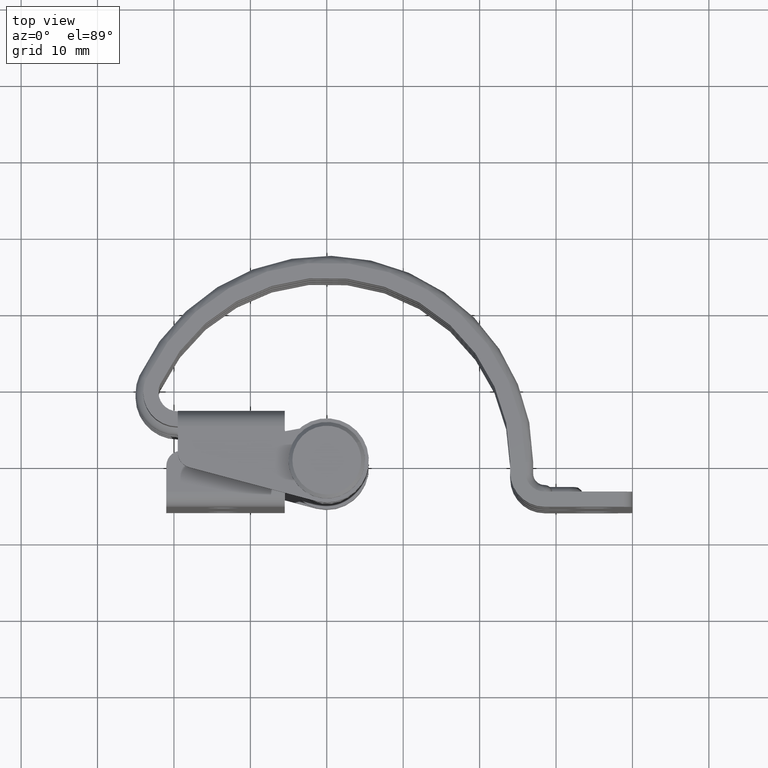
[diagram: clean part render]
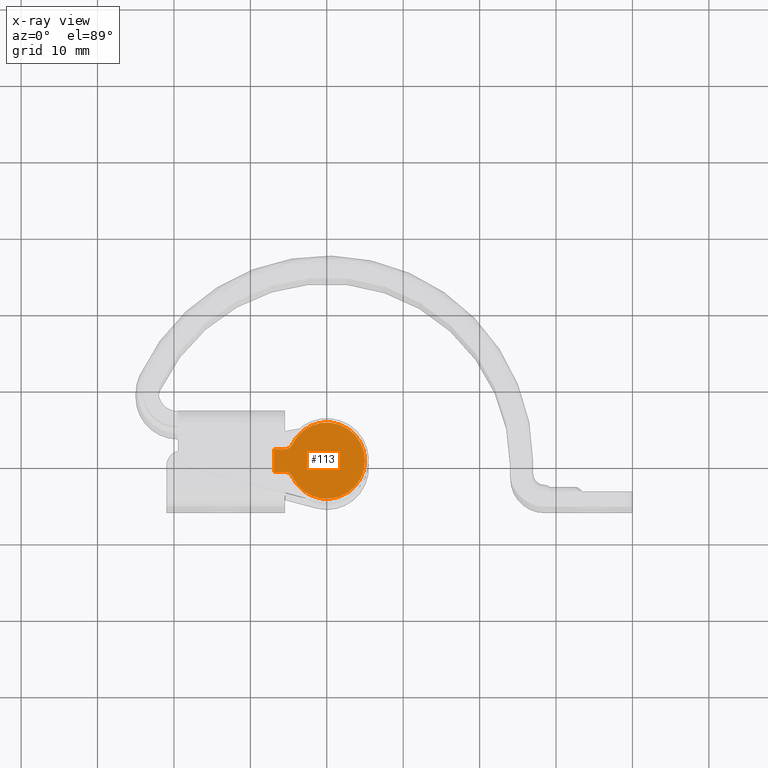
[diagram: x-ray — body ghosted, one internal face saturated and labeled with its STEP entity id]
A machine part, top view, then the same camera in x-ray: the body is ghosted and one INTERNAL B-rep face — a face not visible from any outside direction — is saturated and labeled: STEP entity #113.
In plain terms, the highlighted planar face has unit normal (0, 0, 1).
Its self-contained STEP definition (entity closure, byte-faithful):
#113=ADVANCED_FACE('',(#577),#576,.T.);
#576=PLANE('',#5154);
#577=FACE_OUTER_BOUND('',#5155,.T.);
#5151=CARTESIAN_POINT('',(9.58220043812E+00,-9.42923272628E+00,2.60000000000E+01));
#5152=DIRECTION('',(-0.00000000000E+00,0.00000000000E+00,1.00000000000E+00));
#5153=DIRECTION('',(0.00000000000E+00,1.00000000000E+00,0.00000000000E+00));
#5154=AXIS2_PLACEMENT_3D('',#5151,#5152,#5153);
#5155=EDGE_LOOP('',(#9570,#9571,#9572,#9573,#9574,#9575));
#9570=ORIENTED_EDGE('',*,*,#11739,.F.);
#9571=ORIENTED_EDGE('',*,*,#11742,.T.);
#9572=ORIENTED_EDGE('',*,*,#11743,.F.);
#9573=ORIENTED_EDGE('',*,*,#11744,.T.);
#9574=ORIENTED_EDGE('',*,*,#11745,.T.);
#9575=ORIENTED_EDGE('',*,*,#11746,.T.);
#11739=EDGE_CURVE('',#12825,#12832,#12833,.T.);
#11742=EDGE_CURVE('',#12825,#12852,#12853,.T.);
#11743=EDGE_CURVE('',#12859,#12852,#12860,.T.);
#11744=EDGE_CURVE('',#12859,#12866,#12867,.T.);
#11745=EDGE_CURVE('',#12866,#12873,#12874,.T.);
#11746=EDGE_CURVE('',#12873,#12832,#12880,.T.);
#12825=VERTEX_POINT('',#20009);
#12832=VERTEX_POINT('',#20013);
#12833=CIRCLE('',#20017,1.00000000000E+00);
#12852=VERTEX_POINT('',#20026);
#12853=CIRCLE('',#20030,5.00000000000E+00);
#12859=VERTEX_POINT('',#20031);
#12860=CIRCLE('',#20035,1.00000000000E+00);
#12866=VERTEX_POINT('',#20036);
#12867=LINE('',#20037,#20038);
#12873=VERTEX_POINT('',#20040);
#12874=LINE('',#20041,#20042);
#12880=LINE('',#20044,#20045);
#20009=CARTESIAN_POINT('',(-4.54529671443E+00,-2.08333333334E+00,2.60000000000E+01));
#20013=CARTESIAN_POINT('',(-5.45435605732E+00,-1.50000000000E+00,2.60000000000E+01));
#20014=CARTESIAN_POINT('',(-5.45435605732E+00,-2.50000000000E+00,2.60000000000E+01));
#20015=DIRECTION('',(3.01167270132E-16,-6.57069409648E-16,1.00000000000E+00));
#20016=DIRECTION('',(-9.09059342887E-01,-4.16666666664E-01,-0.00000000000E+00));
#20017=AXIS2_PLACEMENT_3D('',#20014,#20015,#20016);
#20026=CARTESIAN_POINT('',(-4.54529671443E+00,2.08333333333E+00,2.60000000000E+01));
#20027=CARTESIAN_POINT('',(1.24477129742E-43,0.00000000000E+00,2.60000000000E+01));
#20028=DIRECTION('',(-0.00000000000E+00,0.00000000000E+00,1.00000000000E+00));
#20029=DIRECTION('',(-1.00000000000E+00,-0.00000000000E+00,-0.00000000000E+00));
#20030=AXIS2_PLACEMENT_3D('',#20027,#20028,#20029);
#20031=CARTESIAN_POINT('',(-5.45435605732E+00,1.50000000000E+00,2.60000000000E+01));
#20032=CARTESIAN_POINT('',(-5.45435605732E+00,2.50000000000E+00,2.60000000000E+01));
#20033=DIRECTION('',(-7.22801448325E-16,-1.27111376330E-28,1.00000000000E+00));
#20034=DIRECTION('',(-1.75859327101E-13,1.00000000000E+00,-0.00000000000E+00));
#20035=AXIS2_PLACEMENT_3D('',#20032,#20033,#20034);
#20036=CARTESIAN_POINT('',(-6.90000000000E+00,1.50000000000E+00,2.60000000000E+01));
#20037=CARTESIAN_POINT('',(-5.45435605732E+00,1.50000000000E+00,2.60000000000E+01));
#20038=VECTOR('',#20039,1.44564394268E+00);
#20039=DIRECTION('',(-1.00000000000E+00,-3.31766579915E-14,0.00000000000E+00));
#20040=CARTESIAN_POINT('',(-6.90000000000E+00,-1.50000000000E+00,2.60000000000E+01));
#20041=CARTESIAN_POINT('',(-6.90000000000E+00,1.50000000000E+00,2.60000000000E+01));
#20042=VECTOR('',#20043,3.00000000000E+00);
#20043=DIRECTION('',(0.00000000000E+00,-1.00000000000E+00,0.00000000000E+00));
#20044=CARTESIAN_POINT('',(-6.90000000000E+00,-1.50000000000E+00,2.60000000000E+01));
#20045=VECTOR('',#20046,1.44564394268E+00);
#20046=DIRECTION('',(1.00000000000E+00,-7.67978194247E-16,0.00000000000E+00));